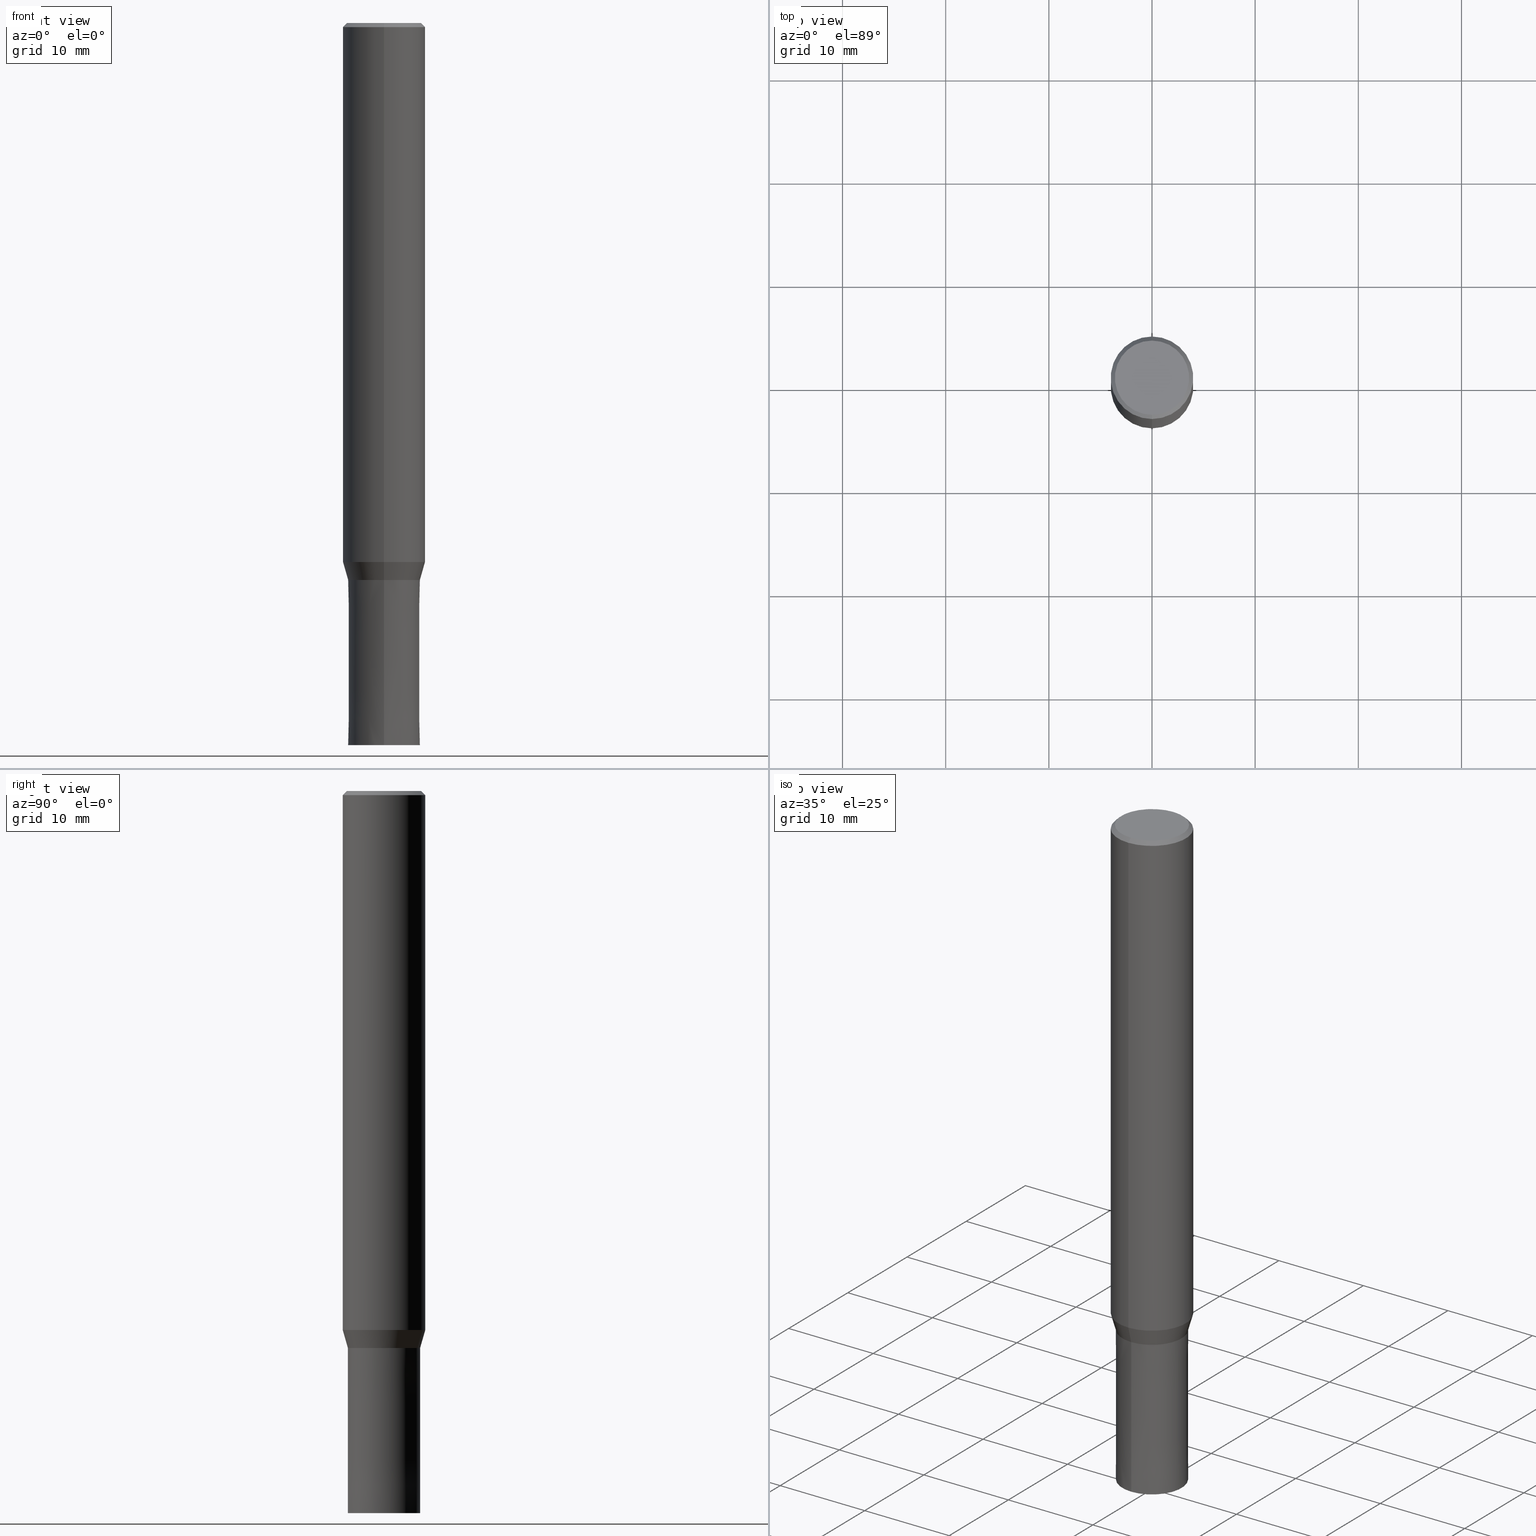
[diagram: canonical four-view strip — front | top / right | iso, engineering-drawing reading convention]
A machine part, canonical four-view strip (front | top / right | iso — engineering-drawing reading convention). The complete STEP part file that produces these views, byte-faithful:
ISO-10303-21;
HEADER;
FILE_DESCRIPTION(('no description'),'unknown implementation level');
FILE_NAME('CZS4070-1600-Huellk.stp','  ',('CIMSOURCE GmbH'),('CADClick - KiM GmbH - www.kimweb.de'),'unknown preprocess','ACIS','unknown authorization');
FILE_SCHEMA(('automotive_design'));
ENDSEC;
DATA;
#1=MECHANICAL_DESIGN_GEOMETRIC_PRESENTATION_REPRESENTATION(' ',(#14,#15,#16,#17,#18,#19,#20,#21,#22,#23,#24,#25,#26,#27,#28,#29,#30,#31,#32,#33,#34,#35,#36,#37,#38,#39,#40,#41,#42,#43,#44,#45,#46,#47,#48,#49,#50,#51,#52,#53,#54,#55,#56,#57,#58,#59,#60,#61,#62,#63,#64),#10);
#2=PRODUCT_DEFINITION_CONTEXT('',#65,'design');
#3=APPLICATION_PROTOCOL_DEFINITION('INTERNATIONAL STANDARD','automotive_design',1994,#65);
#4=PRODUCT_CATEGORY_RELATIONSHIP('NONE','NONE',#66,#67);
#5=SHAPE_DEFINITION_REPRESENTATION(#68,#69);
#6=PRODUCT_DEFINITION_CONTEXT('',#70,'design');
#7=APPLICATION_PROTOCOL_DEFINITION('INTERNATIONAL STANDARD','automotive_design',1994,#70);
#8=PRODUCT_CATEGORY_RELATIONSHIP('NONE','NONE',#71,#72);
#9=SHAPE_DEFINITION_REPRESENTATION(#73,#74);
#10= (GEOMETRIC_REPRESENTATION_CONTEXT(3)GLOBAL_UNCERTAINTY_ASSIGNED_CONTEXT((#77))GLOBAL_UNIT_ASSIGNED_CONTEXT((#79,#80,#81))REPRESENTATION_CONTEXT('NONE','WORKSPACE'));
#14=STYLED_ITEM('',(#83),#84);
#15=STYLED_ITEM('',(#85),#86);
#16=STYLED_ITEM('',(#87),#88);
#17=STYLED_ITEM('',(#89),#90);
#18=STYLED_ITEM('',(#91),#92);
#19=STYLED_ITEM('',(#93),#94);
#20=STYLED_ITEM('',(#95),#96);
#21=STYLED_ITEM('',(#97),#98);
#22=STYLED_ITEM('',(#99),#100);
#23=STYLED_ITEM('',(#101),#102);
#24=STYLED_ITEM('',(#103),#104);
#25=STYLED_ITEM('',(#105),#106);
#26=STYLED_ITEM('',(#107),#108);
#27=STYLED_ITEM('',(#109),#110);
#28=STYLED_ITEM('',(#111),#112);
#29=STYLED_ITEM('',(#113),#114);
#30=STYLED_ITEM('',(#115),#116);
#31=STYLED_ITEM('',(#117),#118);
#32=STYLED_ITEM('',(#119),#120);
#33=STYLED_ITEM('',(#121),#122);
#34=STYLED_ITEM('',(#123),#124);
#35=STYLED_ITEM('',(#125),#126);
#36=STYLED_ITEM('',(#127),#128);
#37=STYLED_ITEM('',(#129),#130);
#38=STYLED_ITEM('',(#131),#132);
#39=STYLED_ITEM('',(#133),#134);
#40=STYLED_ITEM('',(#135),#136);
#41=STYLED_ITEM('',(#137),#138);
#42=STYLED_ITEM('',(#139),#140);
#43=STYLED_ITEM('',(#141),#142);
#44=STYLED_ITEM('',(#143),#144);
#45=STYLED_ITEM('',(#145),#146);
#46=STYLED_ITEM('',(#147),#148);
#47=STYLED_ITEM('',(#149),#150);
#48=STYLED_ITEM('',(#151),#152);
#49=STYLED_ITEM('',(#153),#154);
#50=STYLED_ITEM('',(#155),#156);
#51=STYLED_ITEM('',(#157),#158);
#52=STYLED_ITEM('',(#159),#160);
#53=STYLED_ITEM('',(#161),#162);
#54=STYLED_ITEM('',(#163),#164);
#55=STYLED_ITEM('',(#165),#166);
#56=STYLED_ITEM('',(#167),#168);
#57=STYLED_ITEM('',(#169),#170);
#58=STYLED_ITEM('',(#171),#172);
#59=STYLED_ITEM('',(#173),#174);
#60=STYLED_ITEM('',(#175),#176);
#61=STYLED_ITEM('',(#177),#178);
#62=STYLED_ITEM('',(#179),#180);
#63=STYLED_ITEM('',(#181),#182);
#64=STYLED_ITEM('',(#183),#184);
#65=APPLICATION_CONTEXT(' ');
#66=PRODUCT_CATEGORY('part','NONE');
#67=PRODUCT_RELATED_PRODUCT_CATEGORY('detail',' ',(#185));
#68=PRODUCT_DEFINITION_SHAPE('NONE','NONE',#186);
#69=ADVANCED_BREP_SHAPE_REPRESENTATION('1',(#184,#187),#10);
#70=APPLICATION_CONTEXT(' ');
#71=PRODUCT_CATEGORY('part','NONE');
#72=PRODUCT_RELATED_PRODUCT_CATEGORY('detail',' ',(#188));
#73=PRODUCT_DEFINITION_SHAPE('NONE','NONE',#189);
#74=ADVANCED_BREP_SHAPE_REPRESENTATION('2',(#144,#190),#10);
#77=UNCERTAINTY_MEASURE_WITH_UNIT(LENGTH_MEASURE(1.0E-006),#79,'','');
#79= (CONVERSION_BASED_UNIT('MILLIMETRE',#193)LENGTH_UNIT()NAMED_UNIT(#196));
#80= (NAMED_UNIT(#198)PLANE_ANGLE_UNIT()SI_UNIT($,.RADIAN.));
#81= (NAMED_UNIT(#198)SOLID_ANGLE_UNIT()SI_UNIT($,.STERADIAN.));
#83=PRESENTATION_STYLE_ASSIGNMENT((#204));
#84=VERTEX_POINT('',#205);
#85=PRESENTATION_STYLE_ASSIGNMENT((#206));
#86=EDGE_CURVE('',#140,#134,#207,.T.);
#87=PRESENTATION_STYLE_ASSIGNMENT((#208));
#88=EDGE_CURVE('',#180,#156,#209,.T.);
#89=PRESENTATION_STYLE_ASSIGNMENT((#210));
#90=ADVANCED_FACE('',(#211),#212,.T.);
#91=PRESENTATION_STYLE_ASSIGNMENT((#213));
#92=VERTEX_POINT('',#214);
#93=PRESENTATION_STYLE_ASSIGNMENT((#215));
#94=EDGE_CURVE('',#134,#140,#216,.T.);
#95=PRESENTATION_STYLE_ASSIGNMENT((#217));
#96=ADVANCED_FACE('',(#218,#219),#220,.T.);
#97=PRESENTATION_STYLE_ASSIGNMENT((#221));
#98=EDGE_CURVE('',#178,#162,#222,.T.);
#99=PRESENTATION_STYLE_ASSIGNMENT((#223));
#100=ADVANCED_FACE('',(#224),#225,.T.);
#101=PRESENTATION_STYLE_ASSIGNMENT((#226));
#102=EDGE_CURVE('',#130,#84,#227,.T.);
#103=PRESENTATION_STYLE_ASSIGNMENT((#228));
#104=ADVANCED_FACE('',(#229),#230,.T.);
#105=PRESENTATION_STYLE_ASSIGNMENT((#231));
#106=EDGE_CURVE('',#172,#120,#232,.T.);
#107=PRESENTATION_STYLE_ASSIGNMENT((#233));
#108=EDGE_CURVE('',#120,#172,#234,.T.);
#109=PRESENTATION_STYLE_ASSIGNMENT((#235));
#110=ADVANCED_FACE('',(#236),#237,.T.);
#111=PRESENTATION_STYLE_ASSIGNMENT((#238));
#112=EDGE_CURVE('',#138,#172,#239,.T.);
#113=PRESENTATION_STYLE_ASSIGNMENT((#240));
#114=VERTEX_POINT('',#241);
#115=PRESENTATION_STYLE_ASSIGNMENT((#242));
#116=EDGE_CURVE('',#162,#178,#243,.T.);
#117=PRESENTATION_STYLE_ASSIGNMENT((#244));
#118=EDGE_CURVE('',#154,#114,#245,.T.);
#119=PRESENTATION_STYLE_ASSIGNMENT((#246));
#120=VERTEX_POINT('',#247);
#121=PRESENTATION_STYLE_ASSIGNMENT((#248));
#122=EDGE_CURVE('',#92,#162,#249,.T.);
#123=PRESENTATION_STYLE_ASSIGNMENT((#250));
#124=EDGE_CURVE('',#84,#130,#251,.T.);
#125=PRESENTATION_STYLE_ASSIGNMENT((#252));
#126=EDGE_CURVE('',#114,#156,#253,.T.);
#127=PRESENTATION_STYLE_ASSIGNMENT((#254));
#128=EDGE_CURVE('',#130,#140,#255,.T.);
#129=PRESENTATION_STYLE_ASSIGNMENT((#256));
#130=VERTEX_POINT('',#257);
#131=PRESENTATION_STYLE_ASSIGNMENT((#258));
#132=ADVANCED_FACE('',(#259),#260,.T.);
#133=PRESENTATION_STYLE_ASSIGNMENT((#261));
#134=VERTEX_POINT('',#262);
#135=PRESENTATION_STYLE_ASSIGNMENT((#263));
#136=EDGE_CURVE('',#134,#84,#264,.T.);
#137=PRESENTATION_STYLE_ASSIGNMENT((#265));
#138=VERTEX_POINT('',#266);
#139=PRESENTATION_STYLE_ASSIGNMENT((#267));
#140=VERTEX_POINT('',#268);
#141=PRESENTATION_STYLE_ASSIGNMENT((#269));
#142=EDGE_CURVE('',#180,#154,#270,.T.);
#143=PRESENTATION_STYLE_ASSIGNMENT((#271));
#144=MANIFOLD_SOLID_BREP('2',#272);
#145=PRESENTATION_STYLE_ASSIGNMENT((#273));
#146=ADVANCED_FACE('',(#274),#275,.T.);
#147=PRESENTATION_STYLE_ASSIGNMENT((#276));
#148=EDGE_CURVE('',#114,#154,#277,.T.);
#149=PRESENTATION_STYLE_ASSIGNMENT((#278));
#150=ADVANCED_FACE('',(#279),#280,.T.);
#151=PRESENTATION_STYLE_ASSIGNMENT((#281));
#152=ADVANCED_FACE('',(#282),#283,.T.);
#153=PRESENTATION_STYLE_ASSIGNMENT((#284));
#154=VERTEX_POINT('',#285);
#155=PRESENTATION_STYLE_ASSIGNMENT((#286));
#156=VERTEX_POINT('',#287);
#157=PRESENTATION_STYLE_ASSIGNMENT((#288));
#158=EDGE_CURVE('',#156,#180,#289,.T.);
#159=PRESENTATION_STYLE_ASSIGNMENT((#290));
#160=EDGE_CURVE('',#138,#92,#291,.T.);
#161=PRESENTATION_STYLE_ASSIGNMENT((#292));
#162=VERTEX_POINT('',#293);
#163=PRESENTATION_STYLE_ASSIGNMENT((#294));
#164=EDGE_CURVE('',#92,#138,#295,.T.);
#165=PRESENTATION_STYLE_ASSIGNMENT((#296));
#166=EDGE_CURVE('',#120,#92,#297,.T.);
#167=PRESENTATION_STYLE_ASSIGNMENT((#298));
#168=ADVANCED_FACE('',(#299),#300,.T.);
#169=PRESENTATION_STYLE_ASSIGNMENT((#301));
#170=EDGE_CURVE('',#178,#138,#302,.T.);
#171=PRESENTATION_STYLE_ASSIGNMENT((#303));
#172=VERTEX_POINT('',#304);
#173=PRESENTATION_STYLE_ASSIGNMENT((#305));
#174=ADVANCED_FACE('',(#306),#307,.T.);
#175=PRESENTATION_STYLE_ASSIGNMENT((#308));
#176=ADVANCED_FACE('',(#309),#310,.T.);
#177=PRESENTATION_STYLE_ASSIGNMENT((#311));
#178=VERTEX_POINT('',#312);
#179=PRESENTATION_STYLE_ASSIGNMENT((#313));
#180=VERTEX_POINT('',#314);
#181=PRESENTATION_STYLE_ASSIGNMENT((#315));
#182=ADVANCED_FACE('',(#316),#317,.T.);
#183=PRESENTATION_STYLE_ASSIGNMENT((#318));
#184=MANIFOLD_SOLID_BREP('1',#319);
#185=PRODUCT('1','1','PART-1-DESC',(#320));
#186=PRODUCT_DEFINITION('NONE','NONE',#321,#2);
#187=AXIS2_PLACEMENT_3D('',#322,#323,#324);
#188=PRODUCT('2','2','PART-2-DESC',(#325));
#189=PRODUCT_DEFINITION('NONE','NONE',#326,#6);
#190=AXIS2_PLACEMENT_3D('',#327,#328,#329);
#193=LENGTH_MEASURE_WITH_UNIT(LENGTH_MEASURE(1.0),#330);
#196=DIMENSIONAL_EXPONENTS(1.0,0.0,0.0,0.0,0.0,0.0,0.0);
#198=DIMENSIONAL_EXPONENTS(0.0,0.0,0.0,0.0,0.0,0.0,0.0);
#204=POINT_STYLE(' ',#331,POSITIVE_LENGTH_MEASURE(1.0E-006),#332);
#205=CARTESIAN_POINT('',(4.89836418497182E-016,-3.99995,-52.256));
#206=CURVE_STYLE('',#333,POSITIVE_LENGTH_MEASURE(1.0E-006),#334);
#207=CIRCLE('',#335,3.49995);
#208=CURVE_STYLE('',#336,POSITIVE_LENGTH_MEASURE(1.0E-006),#337);
#209=CIRCLE('',#338,3.4999);
#210=SURFACE_STYLE_USAGE(.BOTH.,#339);
#211=FACE_OUTER_BOUND('',#340,.T.);
#212=CONICAL_SURFACE('',#341,3.74995,0.279208199033747);
#213=POINT_STYLE(' ',#342,POSITIVE_LENGTH_MEASURE(1.0E-006),#343);
#214=CARTESIAN_POINT('',(4.89842541528951E-016,-4.0,-0.399999999999999));
#215=CURVE_STYLE('',#344,POSITIVE_LENGTH_MEASURE(1.0E-006),#345);
#216=CIRCLE('',#346,3.49995);
#217=SURFACE_STYLE_USAGE(.BOTH.,#347);
#218=FACE_OUTER_BOUND('',#348,.T.);
#219=FACE_BOUND('',#349,.T.);
#220=PLANE('',#350);
#221=CURVE_STYLE('',#351,POSITIVE_LENGTH_MEASURE(1.0E-006),#352);
#222=CIRCLE('',#353,3.6);
#223=SURFACE_STYLE_USAGE(.BOTH.,#354);
#224=FACE_OUTER_BOUND('',#355,.T.);
#225=CYLINDRICAL_SURFACE('',#356,4.0);
#226=CURVE_STYLE('',#357,POSITIVE_LENGTH_MEASURE(1.0E-006),#358);
#227=CIRCLE('',#359,3.99995);
#228=SURFACE_STYLE_USAGE(.BOTH.,#360);
#229=FACE_OUTER_BOUND('',#361,.T.);
#230=CONICAL_SURFACE('',#362,3.74995,0.279208199033747);
#231=CURVE_STYLE('',#363,POSITIVE_LENGTH_MEASURE(1.0E-006),#364);
#232=CIRCLE('',#365,4.0);
#233=CURVE_STYLE('',#366,POSITIVE_LENGTH_MEASURE(1.0E-006),#367);
#234=CIRCLE('',#368,4.0);
#235=SURFACE_STYLE_USAGE(.BOTH.,#369);
#236=FACE_OUTER_BOUND('',#370,.T.);
#237=PLANE('',#371);
#238=CURVE_STYLE('',#372,POSITIVE_LENGTH_MEASURE(1.0E-006),#373);
#239=LINE('',#374,#375);
#240=POINT_STYLE(' ',#376,POSITIVE_LENGTH_MEASURE(1.0E-006),#377);
#241=CARTESIAN_POINT('',(4.28612223837832E-016,-3.5,-70.0));
#242=CURVE_STYLE('',#378,POSITIVE_LENGTH_MEASURE(1.0E-006),#379);
#243=CIRCLE('',#380,3.6);
#244=CURVE_STYLE('',#381,POSITIVE_LENGTH_MEASURE(1.0E-006),#382);
#245=CIRCLE('',#383,3.5);
#246=POINT_STYLE(' ',#384,POSITIVE_LENGTH_MEASURE(1.0E-006),#385);
#247=CARTESIAN_POINT('',(4.89842541528951E-016,-4.0,-52.256));
#248=CURVE_STYLE('',#386,POSITIVE_LENGTH_MEASURE(1.0E-006),#387);
#249=LINE('',#388,#389);
#250=CURVE_STYLE('',#390,POSITIVE_LENGTH_MEASURE(1.0E-006),#391);
#251=CIRCLE('',#392,3.99995);
#252=CURVE_STYLE('',#393,POSITIVE_LENGTH_MEASURE(1.0E-006),#394);
#253=LINE('',#395,#396);
#254=CURVE_STYLE('',#397,POSITIVE_LENGTH_MEASURE(1.0E-006),#398);
#255=LINE('',#399,#400);
#256=POINT_STYLE(' ',#401,POSITIVE_LENGTH_MEASURE(1.0E-006),#402);
#257=CARTESIAN_POINT('',(0.0,3.99995,-52.256));
#258=SURFACE_STYLE_USAGE(.BOTH.,#403);
#259=FACE_OUTER_BOUND('',#404,.T.);
#260=CONICAL_SURFACE('',#405,3.49995,6.24999999993181E-006);
#261=POINT_STYLE(' ',#406,POSITIVE_LENGTH_MEASURE(1.0E-006),#407);
#262=CARTESIAN_POINT('',(4.28606100806063E-016,-3.49995,-54.0));
#263=CURVE_STYLE('',#408,POSITIVE_LENGTH_MEASURE(1.0E-006),#409);
#264=LINE('',#410,#411);
#265=POINT_STYLE(' ',#412,POSITIVE_LENGTH_MEASURE(1.0E-006),#413);
#266=CARTESIAN_POINT('',(0.0,4.0,-0.399999999999999));
#267=POINT_STYLE(' ',#414,POSITIVE_LENGTH_MEASURE(1.0E-006),#415);
#268=CARTESIAN_POINT('',(0.0,3.49995,-54.0));
#269=CURVE_STYLE('',#416,POSITIVE_LENGTH_MEASURE(1.0E-006),#417);
#270=LINE('',#418,#419);
#271=SURFACE_STYLE_USAGE(.BOTH.,#420);
#272=CLOSED_SHELL('',(#132,#146,#174,#176));
#273=SURFACE_STYLE_USAGE(.BOTH.,#421);
#274=FACE_OUTER_BOUND('',#422,.T.);
#275=PLANE('',#423);
#276=CURVE_STYLE('',#424,POSITIVE_LENGTH_MEASURE(1.0E-006),#425);
#277=CIRCLE('',#426,3.5);
#278=SURFACE_STYLE_USAGE(.BOTH.,#427);
#279=FACE_OUTER_BOUND('',#428,.T.);
#280=CONICAL_SURFACE('',#429,3.8,0.78539816339745);
#281=SURFACE_STYLE_USAGE(.BOTH.,#430);
#282=FACE_OUTER_BOUND('',#431,.T.);
#283=CONICAL_SURFACE('',#432,3.8,0.78539816339745);
#284=POINT_STYLE(' ',#433,POSITIVE_LENGTH_MEASURE(1.0E-006),#434);
#285=CARTESIAN_POINT('',(0.0,3.5,-70.0));
#286=POINT_STYLE(' ',#435,POSITIVE_LENGTH_MEASURE(1.0E-006),#436);
#287=CARTESIAN_POINT('',(4.28599977774294E-016,-3.4999,-54.0));
#288=CURVE_STYLE('',#437,POSITIVE_LENGTH_MEASURE(1.0E-006),#438);
#289=CIRCLE('',#439,3.4999);
#290=CURVE_STYLE('',#440,POSITIVE_LENGTH_MEASURE(1.0E-006),#441);
#291=CIRCLE('',#442,4.0);
#292=POINT_STYLE(' ',#443,POSITIVE_LENGTH_MEASURE(1.0E-006),#444);
#293=CARTESIAN_POINT('',(4.40858287376056E-016,-3.6,0.0));
#294=CURVE_STYLE('',#445,POSITIVE_LENGTH_MEASURE(1.0E-006),#446);
#295=CIRCLE('',#447,4.0);
#296=CURVE_STYLE('',#448,POSITIVE_LENGTH_MEASURE(1.0E-006),#449);
#297=LINE('',#450,#451);
#298=SURFACE_STYLE_USAGE(.BOTH.,#452);
#299=FACE_OUTER_BOUND('',#453,.T.);
#300=CYLINDRICAL_SURFACE('',#454,4.0);
#301=CURVE_STYLE('',#455,POSITIVE_LENGTH_MEASURE(1.0E-006),#456);
#302=LINE('',#457,#458);
#303=POINT_STYLE(' ',#459,POSITIVE_LENGTH_MEASURE(1.0E-006),#460);
#304=CARTESIAN_POINT('',(0.0,4.0,-52.256));
#305=SURFACE_STYLE_USAGE(.BOTH.,#461);
#306=FACE_OUTER_BOUND('',#462,.T.);
#307=CONICAL_SURFACE('',#463,3.49995,6.24999999993181E-006);
#308=SURFACE_STYLE_USAGE(.BOTH.,#464);
#309=FACE_OUTER_BOUND('',#465,.T.);
#310=PLANE('',#466);
#311=POINT_STYLE(' ',#467,POSITIVE_LENGTH_MEASURE(1.0E-006),#468);
#312=CARTESIAN_POINT('',(0.0,3.6,0.0));
#313=POINT_STYLE(' ',#469,POSITIVE_LENGTH_MEASURE(1.0E-006),#470);
#314=CARTESIAN_POINT('',(0.0,3.4999,-54.0));
#315=SURFACE_STYLE_USAGE(.BOTH.,#471);
#316=FACE_OUTER_BOUND('',#472,.T.);
#317=PLANE('',#473);
#318=SURFACE_STYLE_USAGE(.BOTH.,#474);
#319=CLOSED_SHELL('',(#90,#168,#152,#96,#182,#150,#100,#104,#110));
#320=PRODUCT_CONTEXT('',#65,'mechanical');
#321=PRODUCT_DEFINITION_FORMATION_WITH_SPECIFIED_SOURCE(' ','NONE',#185,.NOT_KNOWN.);
#322=CARTESIAN_POINT('',(0.0,0.0,0.0));
#323=DIRECTION('',(0.0,0.0,1.0));
#324=DIRECTION('',(1.0,0.0,0.0));
#325=PRODUCT_CONTEXT('',#70,'mechanical');
#326=PRODUCT_DEFINITION_FORMATION_WITH_SPECIFIED_SOURCE(' ','NONE',#188,.NOT_KNOWN.);
#327=CARTESIAN_POINT('',(0.0,0.0,0.0));
#328=DIRECTION('',(0.0,0.0,1.0));
#329=DIRECTION('',(1.0,0.0,0.0));
#330= (NAMED_UNIT(#196)LENGTH_UNIT()SI_UNIT(.MILLI.,.METRE.));
#331=PRE_DEFINED_MARKER('');
#332=COLOUR_RGB('',0.498039215803146,0.498039215803146,0.498039215803146);
#333=DRAUGHTING_PRE_DEFINED_CURVE_FONT('continuous');
#334=COLOUR_RGB('',0.498039215803146,0.498039215803146,0.498039215803146);
#335=AXIS2_PLACEMENT_3D('',#476,#477,#478);
#336=DRAUGHTING_PRE_DEFINED_CURVE_FONT('continuous');
#337=COLOUR_RGB('',0.800000011920929,0.800000011920929,0.800000011920929);
#338=AXIS2_PLACEMENT_3D('',#479,#480,#481);
#339=SURFACE_SIDE_STYLE('',(#482));
#340=EDGE_LOOP('',(#483,#484,#485,#486));
#341=AXIS2_PLACEMENT_3D('',#487,#488,#489);
#342=PRE_DEFINED_MARKER('');
#343=COLOUR_RGB('',0.498039215803146,0.498039215803146,0.498039215803146);
#344=DRAUGHTING_PRE_DEFINED_CURVE_FONT('continuous');
#345=COLOUR_RGB('',0.498039215803146,0.498039215803146,0.498039215803146);
#346=AXIS2_PLACEMENT_3D('',#490,#491,#492);
#347=SURFACE_SIDE_STYLE('',(#493));
#348=EDGE_LOOP('',(#494,#495));
#349=EDGE_LOOP('',(#496,#497));
#350=AXIS2_PLACEMENT_3D('',#498,#499,#500);
#351=DRAUGHTING_PRE_DEFINED_CURVE_FONT('continuous');
#352=COLOUR_RGB('',0.498039215803146,0.498039215803146,0.498039215803146);
#353=AXIS2_PLACEMENT_3D('',#501,#502,#503);
#354=SURFACE_SIDE_STYLE('',(#504));
#355=EDGE_LOOP('',(#505,#506,#507,#508));
#356=AXIS2_PLACEMENT_3D('',#509,#510,#511);
#357=DRAUGHTING_PRE_DEFINED_CURVE_FONT('continuous');
#358=COLOUR_RGB('',0.498039215803146,0.498039215803146,0.498039215803146);
#359=AXIS2_PLACEMENT_3D('',#512,#513,#514);
#360=SURFACE_SIDE_STYLE('',(#515));
#361=EDGE_LOOP('',(#516,#517,#518,#519));
#362=AXIS2_PLACEMENT_3D('',#520,#521,#522);
#363=DRAUGHTING_PRE_DEFINED_CURVE_FONT('continuous');
#364=COLOUR_RGB('',0.498039215803146,0.498039215803146,0.498039215803146);
#365=AXIS2_PLACEMENT_3D('',#523,#524,#525);
#366=DRAUGHTING_PRE_DEFINED_CURVE_FONT('continuous');
#367=COLOUR_RGB('',0.498039215803146,0.498039215803146,0.498039215803146);
#368=AXIS2_PLACEMENT_3D('',#526,#527,#528);
#369=SURFACE_SIDE_STYLE('',(#529));
#370=EDGE_LOOP('',(#530,#531));
#371=AXIS2_PLACEMENT_3D('',#532,#533,#534);
#372=DRAUGHTING_PRE_DEFINED_CURVE_FONT('continuous');
#373=COLOUR_RGB('',0.498039215803146,0.498039215803146,0.498039215803146);
#374=CARTESIAN_POINT('',(-4.89842541528951E-016,4.0,-26.328));
#375=VECTOR('',#535,1.0);
#376=PRE_DEFINED_MARKER('');
#377=COLOUR_RGB('',0.800000011920929,0.800000011920929,0.800000011920929);
#378=DRAUGHTING_PRE_DEFINED_CURVE_FONT('continuous');
#379=COLOUR_RGB('',0.498039215803146,0.498039215803146,0.498039215803146);
#380=AXIS2_PLACEMENT_3D('',#536,#537,#538);
#381=DRAUGHTING_PRE_DEFINED_CURVE_FONT('continuous');
#382=COLOUR_RGB('',0.800000011920929,0.800000011920929,0.800000011920929);
#383=AXIS2_PLACEMENT_3D('',#539,#540,#541);
#384=PRE_DEFINED_MARKER('');
#385=COLOUR_RGB('',0.498039215803146,0.498039215803146,0.498039215803146);
#386=DRAUGHTING_PRE_DEFINED_CURVE_FONT('continuous');
#387=COLOUR_RGB('',0.498039215803146,0.498039215803146,0.498039215803146);
#388=CARTESIAN_POINT('',(4.65350414452503E-016,-3.8,-0.199999999999996));
#389=VECTOR('',#542,1.0);
#390=DRAUGHTING_PRE_DEFINED_CURVE_FONT('continuous');
#391=COLOUR_RGB('',0.498039215803146,0.498039215803146,0.498039215803146);
#392=AXIS2_PLACEMENT_3D('',#543,#544,#545);
#393=DRAUGHTING_PRE_DEFINED_CURVE_FONT('continuous');
#394=COLOUR_RGB('',0.800000011920929,0.800000011920929,0.800000011920929);
#395=CARTESIAN_POINT('',(4.28606100806063E-016,-3.49995,-62.0));
#396=VECTOR('',#546,1.0);
#397=DRAUGHTING_PRE_DEFINED_CURVE_FONT('continuous');
#398=COLOUR_RGB('',0.498039215803146,0.498039215803146,0.498039215803146);
#399=CARTESIAN_POINT('',(-4.59221259651622E-016,3.74995,-53.128));
#400=VECTOR('',#547,1.0);
#401=PRE_DEFINED_MARKER('');
#402=COLOUR_RGB('',0.498039215803146,0.498039215803146,0.498039215803146);
#403=SURFACE_SIDE_STYLE('',(#548));
#404=EDGE_LOOP('',(#549,#550,#551,#552));
#405=AXIS2_PLACEMENT_3D('',#553,#554,#555);
#406=PRE_DEFINED_MARKER('');
#407=COLOUR_RGB('',0.498039215803146,0.498039215803146,0.498039215803146);
#408=DRAUGHTING_PRE_DEFINED_CURVE_FONT('continuous');
#409=COLOUR_RGB('',0.498039215803146,0.498039215803146,0.498039215803146);
#410=CARTESIAN_POINT('',(4.59221259651622E-016,-3.74995,-53.128));
#411=VECTOR('',#556,1.0);
#412=PRE_DEFINED_MARKER('');
#413=COLOUR_RGB('',0.498039215803146,0.498039215803146,0.498039215803146);
#414=PRE_DEFINED_MARKER('');
#415=COLOUR_RGB('',0.498039215803146,0.498039215803146,0.498039215803146);
#416=DRAUGHTING_PRE_DEFINED_CURVE_FONT('continuous');
#417=COLOUR_RGB('',0.800000011920929,0.800000011920929,0.800000011920929);
#418=CARTESIAN_POINT('',(-4.28606100806063E-016,3.49995,-62.0));
#419=VECTOR('',#557,1.0);
#420=SURFACE_SIDE_STYLE('',(#558));
#421=SURFACE_SIDE_STYLE('',(#559));
#422=EDGE_LOOP('',(#560,#561));
#423=AXIS2_PLACEMENT_3D('',#562,#563,#564);
#424=DRAUGHTING_PRE_DEFINED_CURVE_FONT('continuous');
#425=COLOUR_RGB('',0.800000011920929,0.800000011920929,0.800000011920929);
#426=AXIS2_PLACEMENT_3D('',#565,#566,#567);
#427=SURFACE_SIDE_STYLE('',(#568));
#428=EDGE_LOOP('',(#569,#570,#571,#572));
#429=AXIS2_PLACEMENT_3D('',#573,#574,#575);
#430=SURFACE_SIDE_STYLE('',(#576));
#431=EDGE_LOOP('',(#577,#578,#579,#580));
#432=AXIS2_PLACEMENT_3D('',#581,#582,#583);
#433=PRE_DEFINED_MARKER('');
#434=COLOUR_RGB('',0.800000011920929,0.800000011920929,0.800000011920929);
#435=PRE_DEFINED_MARKER('');
#436=COLOUR_RGB('',0.800000011920929,0.800000011920929,0.800000011920929);
#437=DRAUGHTING_PRE_DEFINED_CURVE_FONT('continuous');
#438=COLOUR_RGB('',0.800000011920929,0.800000011920929,0.800000011920929);
#439=AXIS2_PLACEMENT_3D('',#584,#585,#586);
#440=DRAUGHTING_PRE_DEFINED_CURVE_FONT('continuous');
#441=COLOUR_RGB('',0.498039215803146,0.498039215803146,0.498039215803146);
#442=AXIS2_PLACEMENT_3D('',#587,#588,#589);
#443=PRE_DEFINED_MARKER('');
#444=COLOUR_RGB('',0.498039215803146,0.498039215803146,0.498039215803146);
#445=DRAUGHTING_PRE_DEFINED_CURVE_FONT('continuous');
#446=COLOUR_RGB('',0.498039215803146,0.498039215803146,0.498039215803146);
#447=AXIS2_PLACEMENT_3D('',#590,#591,#592);
#448=DRAUGHTING_PRE_DEFINED_CURVE_FONT('continuous');
#449=COLOUR_RGB('',0.498039215803146,0.498039215803146,0.498039215803146);
#450=CARTESIAN_POINT('',(4.89842541528951E-016,-4.0,-26.328));
#451=VECTOR('',#593,1.0);
#452=SURFACE_SIDE_STYLE('',(#594));
#453=EDGE_LOOP('',(#595,#596,#597,#598));
#454=AXIS2_PLACEMENT_3D('',#599,#600,#601);
#455=DRAUGHTING_PRE_DEFINED_CURVE_FONT('continuous');
#456=COLOUR_RGB('',0.498039215803146,0.498039215803146,0.498039215803146);
#457=CARTESIAN_POINT('',(-4.65350414452503E-016,3.8,-0.199999999999996));
#458=VECTOR('',#602,1.0);
#459=PRE_DEFINED_MARKER('');
#460=COLOUR_RGB('',0.498039215803146,0.498039215803146,0.498039215803146);
#461=SURFACE_SIDE_STYLE('',(#603));
#462=EDGE_LOOP('',(#604,#605,#606,#607));
#463=AXIS2_PLACEMENT_3D('',#608,#609,#610);
#464=SURFACE_SIDE_STYLE('',(#611));
#465=EDGE_LOOP('',(#612,#613));
#466=AXIS2_PLACEMENT_3D('',#614,#615,#616);
#467=PRE_DEFINED_MARKER('');
#468=COLOUR_RGB('',0.498039215803146,0.498039215803146,0.498039215803146);
#469=PRE_DEFINED_MARKER('');
#470=COLOUR_RGB('',0.800000011920929,0.800000011920929,0.800000011920929);
#471=SURFACE_SIDE_STYLE('',(#617));
#472=EDGE_LOOP('',(#618,#619));
#473=AXIS2_PLACEMENT_3D('',#620,#621,#622);
#474=SURFACE_SIDE_STYLE('',(#623));
#476=CARTESIAN_POINT('',(0.0,0.0,-54.0));
#477=DIRECTION('',(0.0,0.0,-1.0));
#478=DIRECTION('',(0.0,1.0,0.0));
#479=CARTESIAN_POINT('',(0.0,0.0,-54.0));
#480=DIRECTION('',(0.0,0.0,-1.0));
#481=DIRECTION('',(0.0,1.0,0.0));
#482=SURFACE_STYLE_FILL_AREA(#624);
#483=ORIENTED_EDGE('',*,*,#128,.F.);
#484=ORIENTED_EDGE('',*,*,#102,.T.);
#485=ORIENTED_EDGE('',*,*,#136,.F.);
#486=ORIENTED_EDGE('',*,*,#86,.F.);
#487=CARTESIAN_POINT('',(0.0,0.0,-53.128));
#488=DIRECTION('',(-0.0,-0.0,1.0));
#489=DIRECTION('',(0.0,1.0,0.0));
#490=CARTESIAN_POINT('',(0.0,0.0,-54.0));
#491=DIRECTION('',(0.0,0.0,-1.0));
#492=DIRECTION('',(0.0,1.0,0.0));
#493=SURFACE_STYLE_FILL_AREA(#625);
#494=ORIENTED_EDGE('',*,*,#106,.T.);
#495=ORIENTED_EDGE('',*,*,#108,.T.);
#496=ORIENTED_EDGE('',*,*,#102,.F.);
#497=ORIENTED_EDGE('',*,*,#124,.F.);
#498=CARTESIAN_POINT('',(0.0,2.0,-52.256));
#499=DIRECTION('',(0.0,0.0,-1.0));
#500=DIRECTION('',(0.0,1.0,0.0));
#501=CARTESIAN_POINT('',(0.0,0.0,0.0));
#502=DIRECTION('',(0.0,0.0,-1.0));
#503=DIRECTION('',(0.0,1.0,0.0));
#504=SURFACE_STYLE_FILL_AREA(#626);
#505=ORIENTED_EDGE('',*,*,#112,.T.);
#506=ORIENTED_EDGE('',*,*,#108,.F.);
#507=ORIENTED_EDGE('',*,*,#166,.T.);
#508=ORIENTED_EDGE('',*,*,#164,.T.);
#509=CARTESIAN_POINT('',(0.0,0.0,-26.328));
#510=DIRECTION('',(-0.0,-0.0,1.0));
#511=DIRECTION('',(0.0,1.0,0.0));
#512=CARTESIAN_POINT('',(0.0,0.0,-52.256));
#513=DIRECTION('',(0.0,0.0,-1.0));
#514=DIRECTION('',(0.0,1.0,0.0));
#515=SURFACE_STYLE_FILL_AREA(#627);
#516=ORIENTED_EDGE('',*,*,#128,.T.);
#517=ORIENTED_EDGE('',*,*,#94,.F.);
#518=ORIENTED_EDGE('',*,*,#136,.T.);
#519=ORIENTED_EDGE('',*,*,#124,.T.);
#520=CARTESIAN_POINT('',(0.0,0.0,-53.128));
#521=DIRECTION('',(-0.0,-0.0,1.0));
#522=DIRECTION('',(0.0,1.0,0.0));
#523=CARTESIAN_POINT('',(0.0,0.0,-52.256));
#524=DIRECTION('',(0.0,0.0,-1.0));
#525=DIRECTION('',(0.0,1.0,0.0));
#526=CARTESIAN_POINT('',(0.0,0.0,-52.256));
#527=DIRECTION('',(0.0,0.0,-1.0));
#528=DIRECTION('',(0.0,1.0,0.0));
#529=SURFACE_STYLE_FILL_AREA(#628);
#530=ORIENTED_EDGE('',*,*,#86,.T.);
#531=ORIENTED_EDGE('',*,*,#94,.T.);
#532=CARTESIAN_POINT('',(0.0,1.749975,-54.0));
#533=DIRECTION('',(0.0,0.0,-1.0));
#534=DIRECTION('',(0.0,1.0,0.0));
#535=DIRECTION('',(0.0,0.0,-1.0));
#536=CARTESIAN_POINT('',(0.0,0.0,0.0));
#537=DIRECTION('',(0.0,0.0,-1.0));
#538=DIRECTION('',(0.0,1.0,0.0));
#539=CARTESIAN_POINT('',(0.0,0.0,-70.0));
#540=DIRECTION('',(0.0,0.0,-1.0));
#541=DIRECTION('',(0.0,1.0,0.0));
#542=DIRECTION('',(-8.65927457071937E-017,0.707106781186549,0.707106781186546));
#543=CARTESIAN_POINT('',(0.0,0.0,-52.256));
#544=DIRECTION('',(0.0,0.0,-1.0));
#545=DIRECTION('',(0.0,1.0,0.0));
#546=DIRECTION('',(-7.65378971125652E-022,6.24999999989112E-006,0.999999999980469));
#547=DIRECTION('',(3.37494895041124E-017,-0.275594597388538,-0.961273955691222));
#548=SURFACE_STYLE_FILL_AREA(#629);
#549=ORIENTED_EDGE('',*,*,#142,.F.);
#550=ORIENTED_EDGE('',*,*,#88,.T.);
#551=ORIENTED_EDGE('',*,*,#126,.F.);
#552=ORIENTED_EDGE('',*,*,#118,.F.);
#553=CARTESIAN_POINT('',(0.0,0.0,-62.0));
#554=DIRECTION('',(0.0,-0.0,-1.0));
#555=DIRECTION('',(0.0,1.0,0.0));
#556=DIRECTION('',(3.37494895041124E-017,-0.275594597388538,0.961273955691222));
#557=DIRECTION('',(-7.65378971125653E-022,6.24999999989112E-006,-0.999999999980469));
#558=SURFACE_STYLE_FILL_AREA(#630);
#559=SURFACE_STYLE_FILL_AREA(#631);
#560=ORIENTED_EDGE('',*,*,#88,.F.);
#561=ORIENTED_EDGE('',*,*,#158,.F.);
#562=CARTESIAN_POINT('',(0.0,1.74995,-54.0));
#563=DIRECTION('',(-0.0,0.0,1.0));
#564=DIRECTION('',(0.0,-1.0,0.0));
#565=CARTESIAN_POINT('',(0.0,0.0,-70.0));
#566=DIRECTION('',(0.0,0.0,-1.0));
#567=DIRECTION('',(0.0,1.0,0.0));
#568=SURFACE_STYLE_FILL_AREA(#632);
#569=ORIENTED_EDGE('',*,*,#170,.T.);
#570=ORIENTED_EDGE('',*,*,#164,.F.);
#571=ORIENTED_EDGE('',*,*,#122,.T.);
#572=ORIENTED_EDGE('',*,*,#116,.T.);
#573=CARTESIAN_POINT('',(0.0,0.0,-0.199999999999996));
#574=DIRECTION('',(0.0,-0.0,-1.0));
#575=DIRECTION('',(0.0,1.0,0.0));
#576=SURFACE_STYLE_FILL_AREA(#633);
#577=ORIENTED_EDGE('',*,*,#170,.F.);
#578=ORIENTED_EDGE('',*,*,#98,.T.);
#579=ORIENTED_EDGE('',*,*,#122,.F.);
#580=ORIENTED_EDGE('',*,*,#160,.F.);
#581=CARTESIAN_POINT('',(0.0,0.0,-0.199999999999996));
#582=DIRECTION('',(0.0,-0.0,-1.0));
#583=DIRECTION('',(0.0,1.0,0.0));
#584=CARTESIAN_POINT('',(0.0,0.0,-54.0));
#585=DIRECTION('',(0.0,0.0,-1.0));
#586=DIRECTION('',(0.0,1.0,0.0));
#587=CARTESIAN_POINT('',(0.0,0.0,-0.399999999999999));
#588=DIRECTION('',(0.0,0.0,-1.0));
#589=DIRECTION('',(0.0,1.0,0.0));
#590=CARTESIAN_POINT('',(0.0,0.0,-0.399999999999999));
#591=DIRECTION('',(0.0,0.0,-1.0));
#592=DIRECTION('',(0.0,1.0,0.0));
#593=DIRECTION('',(-0.0,-0.0,1.0));
#594=SURFACE_STYLE_FILL_AREA(#634);
#595=ORIENTED_EDGE('',*,*,#112,.F.);
#596=ORIENTED_EDGE('',*,*,#160,.T.);
#597=ORIENTED_EDGE('',*,*,#166,.F.);
#598=ORIENTED_EDGE('',*,*,#106,.F.);
#599=CARTESIAN_POINT('',(0.0,0.0,-26.328));
#600=DIRECTION('',(-0.0,-0.0,1.0));
#601=DIRECTION('',(0.0,1.0,0.0));
#602=DIRECTION('',(-8.65927457071937E-017,0.707106781186549,-0.707106781186546));
#603=SURFACE_STYLE_FILL_AREA(#635);
#604=ORIENTED_EDGE('',*,*,#142,.T.);
#605=ORIENTED_EDGE('',*,*,#148,.F.);
#606=ORIENTED_EDGE('',*,*,#126,.T.);
#607=ORIENTED_EDGE('',*,*,#158,.T.);
#608=CARTESIAN_POINT('',(0.0,0.0,-62.0));
#609=DIRECTION('',(0.0,-0.0,-1.0));
#610=DIRECTION('',(0.0,1.0,0.0));
#611=SURFACE_STYLE_FILL_AREA(#636);
#612=ORIENTED_EDGE('',*,*,#118,.T.);
#613=ORIENTED_EDGE('',*,*,#148,.T.);
#614=CARTESIAN_POINT('',(0.0,1.7475,-70.0));
#615=DIRECTION('',(0.0,0.0,-1.0));
#616=DIRECTION('',(0.0,1.0,0.0));
#617=SURFACE_STYLE_FILL_AREA(#637);
#618=ORIENTED_EDGE('',*,*,#98,.F.);
#619=ORIENTED_EDGE('',*,*,#116,.F.);
#620=CARTESIAN_POINT('',(0.0,1.8,0.0));
#621=DIRECTION('',(-0.0,0.0,1.0));
#622=DIRECTION('',(0.0,-1.0,0.0));
#623=SURFACE_STYLE_FILL_AREA(#638);
#624=FILL_AREA_STYLE('',(#639));
#625=FILL_AREA_STYLE('',(#640));
#626=FILL_AREA_STYLE('',(#641));
#627=FILL_AREA_STYLE('',(#642));
#628=FILL_AREA_STYLE('',(#643));
#629=FILL_AREA_STYLE('',(#644));
#630=FILL_AREA_STYLE('',(#645));
#631=FILL_AREA_STYLE('',(#646));
#632=FILL_AREA_STYLE('',(#647));
#633=FILL_AREA_STYLE('',(#648));
#634=FILL_AREA_STYLE('',(#649));
#635=FILL_AREA_STYLE('',(#650));
#636=FILL_AREA_STYLE('',(#651));
#637=FILL_AREA_STYLE('',(#652));
#638=FILL_AREA_STYLE('',(#653));
#639=FILL_AREA_STYLE_COLOUR('',#654);
#640=FILL_AREA_STYLE_COLOUR('',#655);
#641=FILL_AREA_STYLE_COLOUR('',#656);
#642=FILL_AREA_STYLE_COLOUR('',#657);
#643=FILL_AREA_STYLE_COLOUR('',#658);
#644=FILL_AREA_STYLE_COLOUR('',#659);
#645=FILL_AREA_STYLE_COLOUR('',#660);
#646=FILL_AREA_STYLE_COLOUR('',#661);
#647=FILL_AREA_STYLE_COLOUR('',#662);
#648=FILL_AREA_STYLE_COLOUR('',#663);
#649=FILL_AREA_STYLE_COLOUR('',#664);
#650=FILL_AREA_STYLE_COLOUR('',#665);
#651=FILL_AREA_STYLE_COLOUR('',#666);
#652=FILL_AREA_STYLE_COLOUR('',#667);
#653=FILL_AREA_STYLE_COLOUR('',#668);
#654=COLOUR_RGB('',0.498039215803146,0.498039215803146,0.498039215803146);
#655=COLOUR_RGB('',0.498039215803146,0.498039215803146,0.498039215803146);
#656=COLOUR_RGB('',0.498039215803146,0.498039215803146,0.498039215803146);
#657=COLOUR_RGB('',0.498039215803146,0.498039215803146,0.498039215803146);
#658=COLOUR_RGB('',0.498039215803146,0.498039215803146,0.498039215803146);
#659=COLOUR_RGB('',0.800000011920929,0.800000011920929,0.800000011920929);
#660=COLOUR_RGB('',0.800000011920929,0.800000011920929,0.800000011920929);
#661=COLOUR_RGB('',0.800000011920929,0.800000011920929,0.800000011920929);
#662=COLOUR_RGB('',0.498039215803146,0.498039215803146,0.498039215803146);
#663=COLOUR_RGB('',0.498039215803146,0.498039215803146,0.498039215803146);
#664=COLOUR_RGB('',0.498039215803146,0.498039215803146,0.498039215803146);
#665=COLOUR_RGB('',0.800000011920929,0.800000011920929,0.800000011920929);
#666=COLOUR_RGB('',0.800000011920929,0.800000011920929,0.800000011920929);
#667=COLOUR_RGB('',0.498039215803146,0.498039215803146,0.498039215803146);
#668=COLOUR_RGB('',0.498039215803146,0.498039215803146,0.498039215803146);
#669=AXIS2_PLACEMENT_3D('PCS',#670,#671,#672);
#670=CARTESIAN_POINT('',(0.0,0.0,0.0));
#671=DIRECTION('',(0.0,0.0,1.0));
#672=DIRECTION('',(1.0,0.0,0.0));
#673=AXIS2_PLACEMENT_3D('CIP',#674,#675,#676);
#674=CARTESIAN_POINT('',(0.0,0.0,-70.0));
#675=DIRECTION('',(0.0,0.0,1.0));
#676=DIRECTION('',(1.0,0.0,0.0));
#677=AXIS2_PLACEMENT_3D('CRP',#678,#679,#680);
#678=CARTESIAN_POINT('',(-3.5,0.0,-70.0));
#679=DIRECTION('',(0.0,0.0,1.0));
#680=DIRECTION('',(1.0,0.0,0.0));
#681=AXIS2_PLACEMENT_3D('MCS',#682,#683,#684);
#682=CARTESIAN_POINT('',(0.0,0.0,-52.256));
#683=DIRECTION('',(0.0,0.0,1.0));
#684=DIRECTION('',(1.0,0.0,0.0));
#685=CONSTRUCTIVE_GEOMETRY_REPRESENTATION_RELATIONSHIP('coordinate systems',$,#69,#686);
#686=CONSTRUCTIVE_GEOMETRY_REPRESENTATION('coordinate systems',(#669,#673,#677,#681),#10);
ENDSEC;
END-ISO-10303-21;
